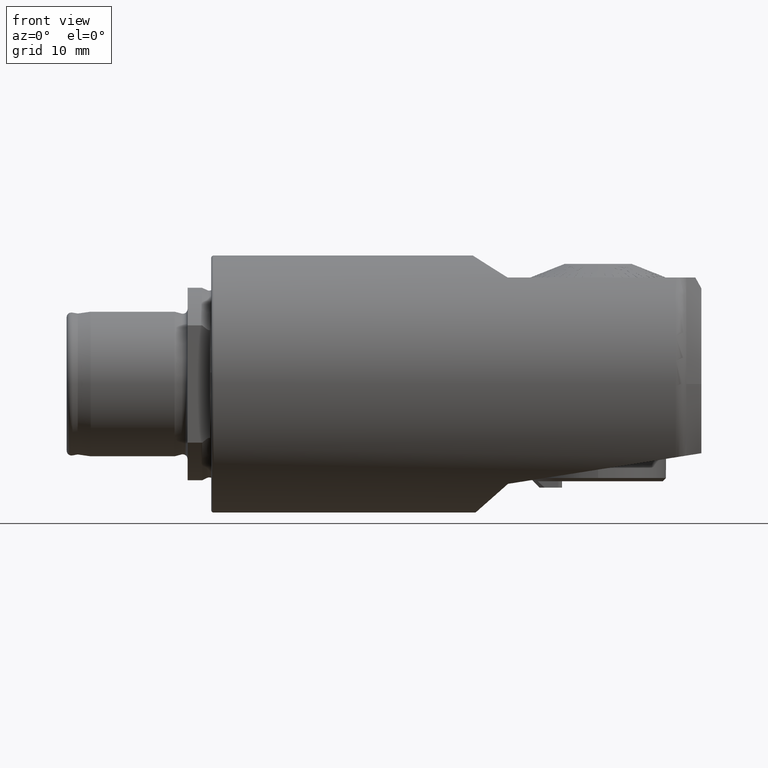
[diagram: clean part render]
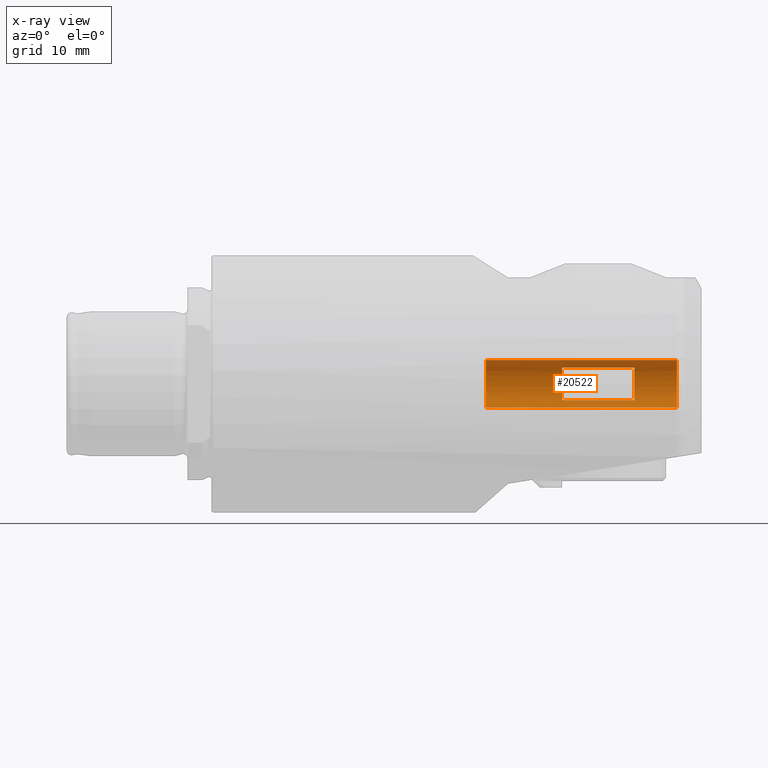
[diagram: x-ray — body ghosted, one internal face saturated and labeled with its STEP entity id]
A machine part, front view, then the same camera in x-ray: the body is ghosted and one INTERNAL B-rep face — a face not visible from any outside direction — is saturated and labeled: STEP entity #20522.
In plain terms, the highlighted cylindrical surface (edge-blend (fillet) strip) has radius 2.975 mm, axis along (-1, 0, 0).
Its self-contained STEP definition (entity closure, byte-faithful):
#2818 = FACE_BOUND ( 'NONE', #19985, .T. ) ;
#2823 = FACE_OUTER_BOUND ( 'NONE', #20006, .T. ) ;
#2827 = CYLINDRICAL_SURFACE ( 'NONE', #4261, 2.975000000000000500 ) ;
#3742 = ORIENTED_EDGE ( 'NONE', *, *, #21048, .F. ) ;
#3743 = ORIENTED_EDGE ( 'NONE', *, *, #21054, .F. ) ;
#3744 = ORIENTED_EDGE ( 'NONE', *, *, #21067, .T. ) ;
#3745 = ORIENTED_EDGE ( 'NONE', *, *, #21078, .F. ) ;
#3746 = ORIENTED_EDGE ( 'NONE', *, *, #21040, .F. ) ;
#3747 = ORIENTED_EDGE ( 'NONE', *, *, #21052, .F. ) ;
#3748 = ORIENTED_EDGE ( 'NONE', *, *, #21058, .F. ) ;
#3749 = ORIENTED_EDGE ( 'NONE', *, *, #21066, .F. ) ;
#4261 = AXIS2_PLACEMENT_3D ( 'NONE', #12628, #12625, #12624 ) ;
#8325 = CIRCLE ( 'NONE', #10609, 2.975000000000000500 ) ;
#8327 = LINE ( 'NONE', #14660, #8336 ) ;
#8335 = LINE ( 'NONE', #14672, #8339 ) ;
#8336 = VECTOR ( 'NONE', #14667, 1000.000000000000000 ) ;
#8338 = CIRCLE ( 'NONE', #10612, 2.975000000000000500 ) ;
#8339 = VECTOR ( 'NONE', #14673, 1000.000000000000000 ) ;
#8342 = CIRCLE ( 'NONE', #10613, 2.975000000000000500 ) ;
#8349 = LINE ( 'NONE', #14761, #8351 ) ;
#8350 = LINE ( 'NONE', #14763, #8353 ) ;
#8351 = VECTOR ( 'NONE', #14762, 1000.000000000000000 ) ;
#8353 = VECTOR ( 'NONE', #14764, 1000.000000000000000 ) ;
#8364 = CIRCLE ( 'NONE', #10623, 2.975000000000000500 ) ;
#9493 = CARTESIAN_POINT ( 'NONE',  ( 19.49999999999999600, -2.175000000000001600, -2.029778313018443000 ) ) ;
#9501 = CARTESIAN_POINT ( 'NONE',  ( 10.49999999999999600, -2.175000000000001600, 2.029778313018442100 ) ) ;
#9507 = CARTESIAN_POINT ( 'NONE',  ( 28.99999999999999600, 0.0000000000000000000, -2.975000000000000500 ) ) ;
#9509 = CARTESIAN_POINT ( 'NONE',  ( 10.49999999999999600, -2.175000000000001600, -2.029778313018442100 ) ) ;
#9513 = CARTESIAN_POINT ( 'NONE',  ( 19.49999999999999600, -2.175000000000001600, 2.029778313018443000 ) ) ;
#9531 = CARTESIAN_POINT ( 'NONE',  ( 5.200000000000000200, 0.0000000000000000000, -2.975000000000000500 ) ) ;
#9568 = CARTESIAN_POINT ( 'NONE',  ( 28.99999999999999600, 3.643324227463376500E-016, 2.975000000000000500 ) ) ;
#9630 = CARTESIAN_POINT ( 'NONE',  ( 5.200000000000000200, 3.643324227463376500E-016, 2.975000000000000500 ) ) ;
#10609 = AXIS2_PLACEMENT_3D ( 'NONE', #14627, #14628, #14629 ) ;
#10612 = AXIS2_PLACEMENT_3D ( 'NONE', #14685, #14686, #14687 ) ;
#10613 = AXIS2_PLACEMENT_3D ( 'NONE', #14720, #14721, #14722 ) ;
#10623 = AXIS2_PLACEMENT_3D ( 'NONE', #14805, #14806, #14807 ) ;
#12624 = DIRECTION ( 'NONE',  ( 0.0000000000000000000, 0.0000000000000000000, -1.000000000000000000 ) ) ;
#12625 = DIRECTION ( 'NONE',  ( 1.000000000000000000, -0.0000000000000000000, -0.0000000000000000000 ) ) ;
#12628 = CARTESIAN_POINT ( 'NONE',  ( 0.0000000000000000000, 0.0000000000000000000, 0.0000000000000000000 ) ) ;
#14627 = CARTESIAN_POINT ( 'NONE',  ( 10.49999999999999600, 0.0000000000000000000, 0.0000000000000000000 ) ) ;
#14628 = DIRECTION ( 'NONE',  ( 1.000000000000000000, -0.0000000000000000000, -0.0000000000000000000 ) ) ;
#14629 = DIRECTION ( 'NONE',  ( 0.0000000000000000000, 8.881784197001252300E-016, 1.000000000000000000 ) ) ;
#14660 = CARTESIAN_POINT ( 'NONE',  ( 0.0000000000000000000, 3.643324227463376500E-016, 2.975000000000000500 ) ) ;
#14667 = DIRECTION ( 'NONE',  ( 1.000000000000000000, -0.0000000000000000000, -0.0000000000000000000 ) ) ;
#14672 = CARTESIAN_POINT ( 'NONE',  ( 0.0000000000000000000, -2.175000000000001600, 2.029778313018443000 ) ) ;
#14673 = DIRECTION ( 'NONE',  ( -1.000000000000000000, 0.0000000000000000000, 0.0000000000000000000 ) ) ;
#14685 = CARTESIAN_POINT ( 'NONE',  ( 5.200000000000000200, 0.0000000000000000000, 0.0000000000000000000 ) ) ;
#14686 = DIRECTION ( 'NONE',  ( -1.000000000000000000, -0.0000000000000000000, -0.0000000000000000000 ) ) ;
#14687 = DIRECTION ( 'NONE',  ( 0.0000000000000000000, 0.0000000000000000000, 1.000000000000000000 ) ) ;
#14720 = CARTESIAN_POINT ( 'NONE',  ( 19.49999999999999600, 0.0000000000000000000, 0.0000000000000000000 ) ) ;
#14721 = DIRECTION ( 'NONE',  ( -1.000000000000000000, -0.0000000000000000000, -0.0000000000000000000 ) ) ;
#14722 = DIRECTION ( 'NONE',  ( 0.0000000000000000000, 8.881784197001252300E-016, -1.000000000000000000 ) ) ;
#14761 = CARTESIAN_POINT ( 'NONE',  ( 0.0000000000000000000, -2.175000000000001600, -2.029778313018443000 ) ) ;
#14762 = DIRECTION ( 'NONE',  ( 1.000000000000000000, -0.0000000000000000000, -0.0000000000000000000 ) ) ;
#14763 = CARTESIAN_POINT ( 'NONE',  ( 0.0000000000000000000, 0.0000000000000000000, -2.975000000000000500 ) ) ;
#14764 = DIRECTION ( 'NONE',  ( 1.000000000000000000, -0.0000000000000000000, -0.0000000000000000000 ) ) ;
#14805 = CARTESIAN_POINT ( 'NONE',  ( 28.99999999999999600, 0.0000000000000000000, 0.0000000000000000000 ) ) ;
#14806 = DIRECTION ( 'NONE',  ( 1.000000000000000000, -0.0000000000000000000, -0.0000000000000000000 ) ) ;
#14807 = DIRECTION ( 'NONE',  ( 0.0000000000000000000, 0.0000000000000000000, -1.000000000000000000 ) ) ;
#18818 = VERTEX_POINT ( 'NONE', #9493 ) ;
#18826 = VERTEX_POINT ( 'NONE', #9501 ) ;
#18832 = VERTEX_POINT ( 'NONE', #9507 ) ;
#18834 = VERTEX_POINT ( 'NONE', #9509 ) ;
#18838 = VERTEX_POINT ( 'NONE', #9513 ) ;
#18856 = VERTEX_POINT ( 'NONE', #9531 ) ;
#18893 = VERTEX_POINT ( 'NONE', #9568 ) ;
#18955 = VERTEX_POINT ( 'NONE', #9630 ) ;
#19985 = EDGE_LOOP ( 'NONE', ( #3746, #3747, #3748, #3749 ) ) ;
#20006 = EDGE_LOOP ( 'NONE', ( #3742, #3743, #3744, #3745 ) ) ;
#20522 = ADVANCED_FACE ( 'NONE', ( #2823, #2818 ), #2827, .T. ) ;
#21040 = EDGE_CURVE ( 'NONE', #18826, #18834, #8325, .T. ) ;
#21048 = EDGE_CURVE ( 'NONE', #18955, #18893, #8327, .T. ) ;
#21052 = EDGE_CURVE ( 'NONE', #18838, #18826, #8335, .T. ) ;
#21054 = EDGE_CURVE ( 'NONE', #18856, #18955, #8338, .T. ) ;
#21058 = EDGE_CURVE ( 'NONE', #18818, #18838, #8342, .T. ) ;
#21066 = EDGE_CURVE ( 'NONE', #18834, #18818, #8349, .T. ) ;
#21067 = EDGE_CURVE ( 'NONE', #18856, #18832, #8350, .T. ) ;
#21078 = EDGE_CURVE ( 'NONE', #18893, #18832, #8364, .T. ) ;